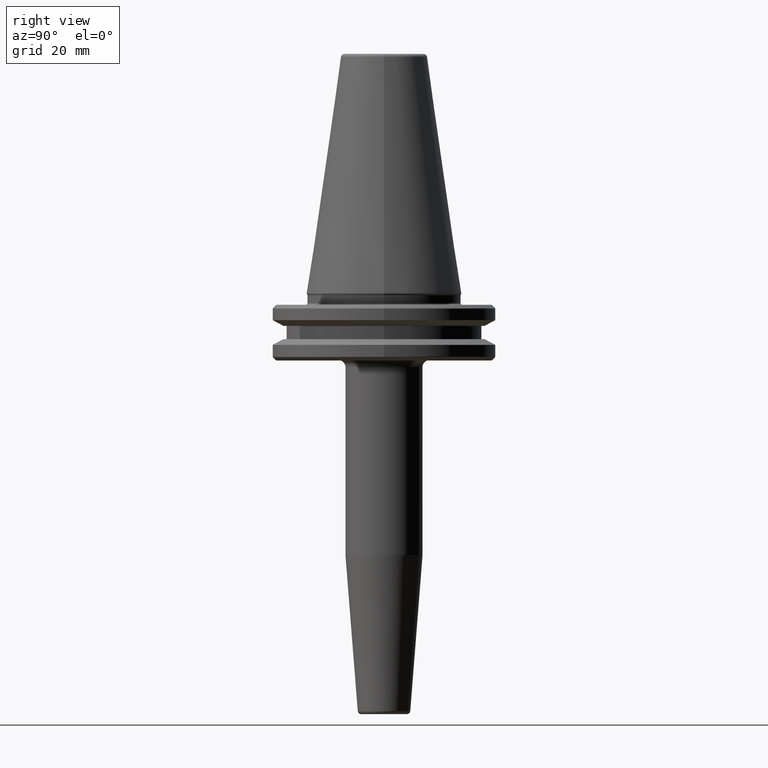
[diagram: clean part render]
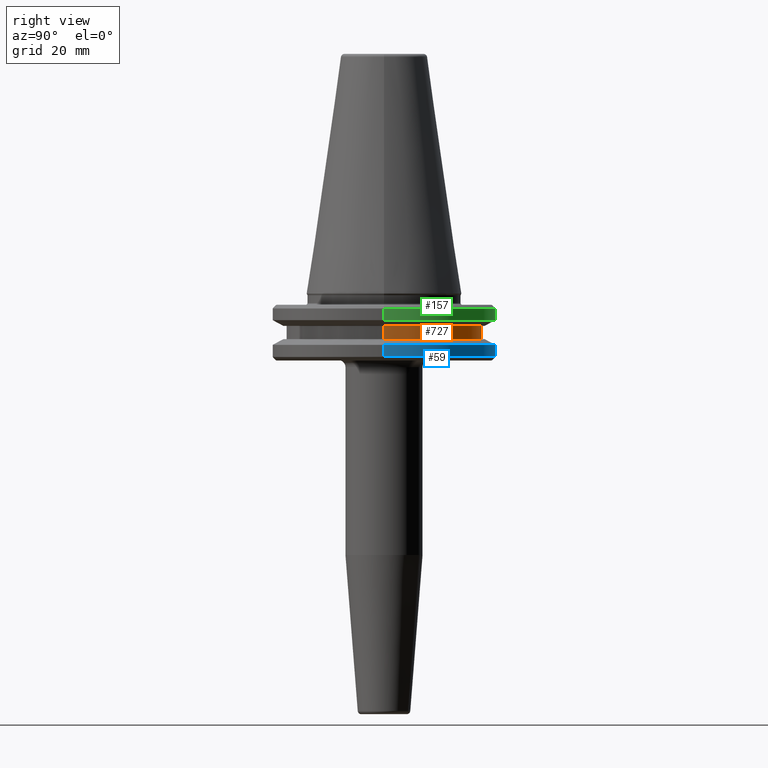
[diagram: same view with three faces highlighted in distinct colors, each labeled with its STEP entity id]
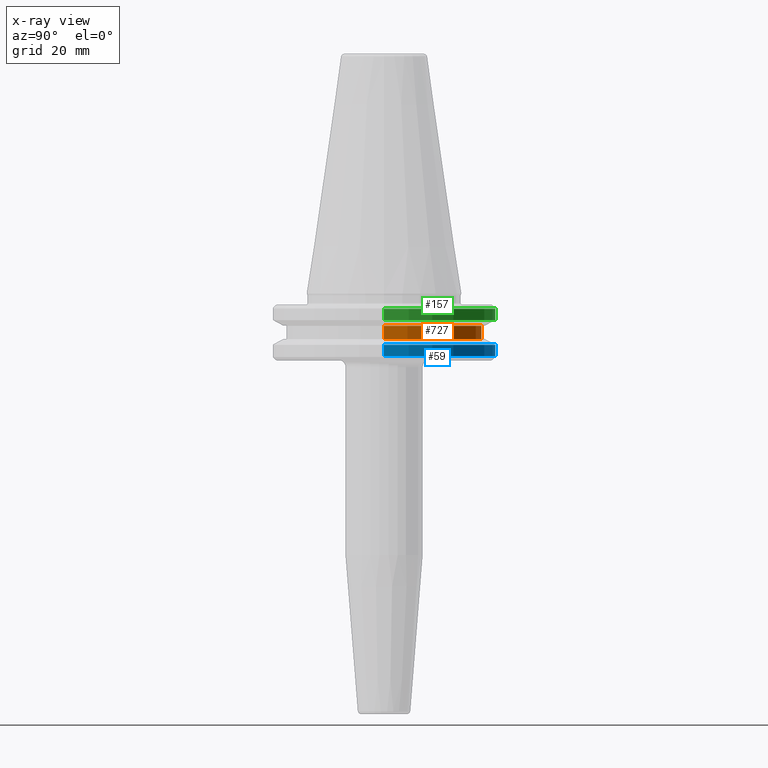
[diagram: x-ray of the same camera — body ghosted, the three highlighted faces saturated]
A machine part, right view with three faces highlighted in distinct colors.
The next image is the same camera in x-ray (body ghosted, the three faces saturated) — at least one of them is partly hidden behind the body in this view.
Their STEP definitions:

[orange] entity #727 — the highlighted cylindrical surface (partial cylindrical patch) has radius 28 mm, axis along (-0, -0, 1).
#71 = VERTEX_POINT ( 'NONE', #1248 ) ;
#98 = CARTESIAN_POINT ( 'NONE',  ( -28.00000000000000000, 3.429011037612589300E-015, 113.5216080541959500 ) ) ;
#119 = DIRECTION ( 'NONE',  ( -0.0000000000000000000, -0.0000000000000000000, 1.000000000000000000 ) ) ;
#122 = EDGE_LOOP ( 'NONE', ( #1063, #841, #663, #935 ) ) ;
#135 = DIRECTION ( 'NONE',  ( 1.000000000000000000, 0.0000000000000000000, 0.0000000000000000000 ) ) ;
#180 = AXIS2_PLACEMENT_3D ( 'NONE', #230, #119, #696 ) ;
#230 = CARTESIAN_POINT ( 'NONE',  ( 0.0000000000000000000, 0.0000000000000000000, 113.5216080541959500 ) ) ;
#231 = AXIS2_PLACEMENT_3D ( 'NONE', #924, #1021, #342 ) ;
#243 = DIRECTION ( 'NONE',  ( -0.0000000000000000000, -0.0000000000000000000, 1.000000000000000000 ) ) ;
#247 = CARTESIAN_POINT ( 'NONE',  ( 0.0000000000000000000, 0.0000000000000000000, -13.00000000000001100 ) ) ;
#279 = LINE ( 'NONE', #98, #488 ) ;
#302 = AXIS2_PLACEMENT_3D ( 'NONE', #247, #243, #135 ) ;
#342 = DIRECTION ( 'NONE',  ( 1.000000000000000000, 0.0000000000000000000, 0.0000000000000000000 ) ) ;
#389 = DIRECTION ( 'NONE',  ( -0.0000000000000000000, -0.0000000000000000000, 1.000000000000000000 ) ) ;
#405 = CARTESIAN_POINT ( 'NONE',  ( -28.00000000000000000, 3.429011037612589300E-015, -9.199999999999999300 ) ) ;
#406 = EDGE_CURVE ( 'NONE', #71, #1187, #1234, .T. ) ;
#488 = VECTOR ( 'NONE', #389, 1000.000000000000000 ) ;
#525 = FACE_OUTER_BOUND ( 'NONE', #122, .T. ) ;
#567 = CARTESIAN_POINT ( 'NONE',  ( -28.00000000000000000, 3.429011037612589300E-015, -13.00000000000001100 ) ) ;
#606 = EDGE_CURVE ( 'NONE', #724, #71, #1168, .T. ) ;
#663 = ORIENTED_EDGE ( 'NONE', *, *, #406, .F. ) ;
#696 = DIRECTION ( 'NONE',  ( 1.000000000000000000, 0.0000000000000000000, 0.0000000000000000000 ) ) ;
#712 = CARTESIAN_POINT ( 'NONE',  ( 28.00000000000000000, 0.0000000000000000000, 113.5216080541959500 ) ) ;
#724 = VERTEX_POINT ( 'NONE', #1201 ) ;
#727 = ADVANCED_FACE ( 'NONE', ( #525 ), #798, .T. ) ;
#781 = EDGE_CURVE ( 'NONE', #724, #845, #1036, .T. ) ;
#798 = CYLINDRICAL_SURFACE ( 'NONE', #180, 28.00000000000000000 ) ;
#841 = ORIENTED_EDGE ( 'NONE', *, *, #1064, .T. ) ;
#845 = VERTEX_POINT ( 'NONE', #567 ) ;
#904 = DIRECTION ( 'NONE',  ( -0.0000000000000000000, -0.0000000000000000000, 1.000000000000000000 ) ) ;
#924 = CARTESIAN_POINT ( 'NONE',  ( 0.0000000000000000000, 0.0000000000000000000, -9.199999999999999300 ) ) ;
#935 = ORIENTED_EDGE ( 'NONE', *, *, #606, .F. ) ;
#1021 = DIRECTION ( 'NONE',  ( -0.0000000000000000000, -0.0000000000000000000, 1.000000000000000000 ) ) ;
#1036 = CIRCLE ( 'NONE', #302, 28.00000000000000000 ) ;
#1063 = ORIENTED_EDGE ( 'NONE', *, *, #781, .T. ) ;
#1064 = EDGE_CURVE ( 'NONE', #845, #1187, #279, .T. ) ;
#1138 = VECTOR ( 'NONE', #904, 1000.000000000000000 ) ;
#1168 = LINE ( 'NONE', #712, #1138 ) ;
#1187 = VERTEX_POINT ( 'NONE', #405 ) ;
#1201 = CARTESIAN_POINT ( 'NONE',  ( 28.00000000000000000, 0.0000000000000000000, -13.00000000000001100 ) ) ;
#1234 = CIRCLE ( 'NONE', #231, 28.00000000000000000 ) ;
#1248 = CARTESIAN_POINT ( 'NONE',  ( 28.00000000000000000, 0.0000000000000000000, -9.199999999999999300 ) ) ;

[blue] entity #59 — the highlighted cylindrical surface (partial cylindrical patch) has radius 31.75 mm, axis along (-0, -0, 1).
#11 = DIRECTION ( 'NONE',  ( -0.0000000000000000000, -0.0000000000000000000, 1.000000000000000000 ) ) ;
#24 = CARTESIAN_POINT ( 'NONE',  ( 31.75000000000000000, 0.0000000000000000000, -14.62183664205671200 ) ) ;
#27 = DIRECTION ( 'NONE',  ( 1.000000000000000000, 0.0000000000000000000, 0.0000000000000000000 ) ) ;
#45 = VERTEX_POINT ( 'NONE', #1254 ) ;
#59 = ADVANCED_FACE ( 'NONE', ( #272 ), #540, .T. ) ;
#74 = DIRECTION ( 'NONE',  ( -0.0000000000000000000, -0.0000000000000000000, 1.000000000000000000 ) ) ;
#76 = EDGE_CURVE ( 'NONE', #1006, #1117, #277, .T. ) ;
#89 = LINE ( 'NONE', #181, #1091 ) ;
#168 = DIRECTION ( 'NONE',  ( -0.0000000000000000000, -0.0000000000000000000, 1.000000000000000000 ) ) ;
#181 = CARTESIAN_POINT ( 'NONE',  ( -31.75000000000000000, 3.888253587292846500E-015, 113.5216080541959500 ) ) ;
#272 = FACE_OUTER_BOUND ( 'NONE', #587, .T. ) ;
#277 = CIRCLE ( 'NONE', #469, 31.75000000000000000 ) ;
#303 = EDGE_CURVE ( 'NONE', #425, #45, #610, .T. ) ;
#304 = DIRECTION ( 'NONE',  ( -0.0000000000000000000, -0.0000000000000000000, 1.000000000000000000 ) ) ;
#335 = EDGE_CURVE ( 'NONE', #1117, #45, #89, .T. ) ;
#337 = VECTOR ( 'NONE', #168, 1000.000000000000000 ) ;
#355 = AXIS2_PLACEMENT_3D ( 'NONE', #1243, #11, #1159 ) ;
#425 = VERTEX_POINT ( 'NONE', #24 ) ;
#469 = AXIS2_PLACEMENT_3D ( 'NONE', #686, #304, #27 ) ;
#494 = AXIS2_PLACEMENT_3D ( 'NONE', #574, #74, #561 ) ;
#540 = CYLINDRICAL_SURFACE ( 'NONE', #355, 31.75000000000000000 ) ;
#561 = DIRECTION ( 'NONE',  ( 1.000000000000000000, 0.0000000000000000000, 0.0000000000000000000 ) ) ;
#574 = CARTESIAN_POINT ( 'NONE',  ( 0.0000000000000000000, 0.0000000000000000000, -14.62183664205671200 ) ) ;
#587 = EDGE_LOOP ( 'NONE', ( #908, #692, #1142, #956 ) ) ;
#610 = CIRCLE ( 'NONE', #494, 31.75000000000000000 ) ;
#686 = CARTESIAN_POINT ( 'NONE',  ( 0.0000000000000000000, 0.0000000000000000000, -17.93431457505076300 ) ) ;
#688 = CARTESIAN_POINT ( 'NONE',  ( -31.75000000000000000, 3.888253587292846500E-015, -17.93431457505076300 ) ) ;
#692 = ORIENTED_EDGE ( 'NONE', *, *, #335, .T. ) ;
#742 = DIRECTION ( 'NONE',  ( -0.0000000000000000000, -0.0000000000000000000, 1.000000000000000000 ) ) ;
#745 = CARTESIAN_POINT ( 'NONE',  ( 31.75000000000000000, 0.0000000000000000000, 113.5216080541959500 ) ) ;
#852 = LINE ( 'NONE', #745, #337 ) ;
#908 = ORIENTED_EDGE ( 'NONE', *, *, #76, .T. ) ;
#956 = ORIENTED_EDGE ( 'NONE', *, *, #968, .F. ) ;
#968 = EDGE_CURVE ( 'NONE', #1006, #425, #852, .T. ) ;
#1006 = VERTEX_POINT ( 'NONE', #1046 ) ;
#1046 = CARTESIAN_POINT ( 'NONE',  ( 31.75000000000000000, 0.0000000000000000000, -17.93431457505076300 ) ) ;
#1091 = VECTOR ( 'NONE', #742, 1000.000000000000000 ) ;
#1117 = VERTEX_POINT ( 'NONE', #688 ) ;
#1142 = ORIENTED_EDGE ( 'NONE', *, *, #303, .F. ) ;
#1159 = DIRECTION ( 'NONE',  ( 1.000000000000000000, 0.0000000000000000000, 0.0000000000000000000 ) ) ;
#1243 = CARTESIAN_POINT ( 'NONE',  ( 0.0000000000000000000, 0.0000000000000000000, 113.5216080541959500 ) ) ;
#1254 = CARTESIAN_POINT ( 'NONE',  ( -31.75000000000000000, 3.888253587292846500E-015, -14.62183664205671200 ) ) ;

[green] entity #157 — the highlighted cylindrical surface (partial cylindrical patch) has radius 31.75 mm, axis along (-0, -0, 1).
#23 = LINE ( 'NONE', #867, #253 ) ;
#44 = DIRECTION ( 'NONE',  ( -0.0000000000000000000, -0.0000000000000000000, 1.000000000000000000 ) ) ;
#50 = CIRCLE ( 'NONE', #1147, 31.75000000000000000 ) ;
#128 = ORIENTED_EDGE ( 'NONE', *, *, #391, .T. ) ;
#157 = ADVANCED_FACE ( 'NONE', ( #1019 ), #930, .T. ) ;
#193 = CARTESIAN_POINT ( 'NONE',  ( -31.75000000000000000, 3.888253587292846500E-015, -7.578163357943284800 ) ) ;
#196 = CARTESIAN_POINT ( 'NONE',  ( -31.75000000000000000, 3.888253587292846500E-015, -4.365685424949250000 ) ) ;
#205 = CIRCLE ( 'NONE', #289, 31.75000000000000000 ) ;
#253 = VECTOR ( 'NONE', #290, 1000.000000000000000 ) ;
#289 = AXIS2_PLACEMENT_3D ( 'NONE', #799, #605, #988 ) ;
#290 = DIRECTION ( 'NONE',  ( -0.0000000000000000000, -0.0000000000000000000, 1.000000000000000000 ) ) ;
#297 = CARTESIAN_POINT ( 'NONE',  ( 0.0000000000000000000, 0.0000000000000000000, -4.365685424949250000 ) ) ;
#326 = DIRECTION ( 'NONE',  ( 1.000000000000000000, 0.0000000000000000000, 0.0000000000000000000 ) ) ;
#391 = EDGE_CURVE ( 'NONE', #591, #1039, #205, .T. ) ;
#456 = EDGE_CURVE ( 'NONE', #1039, #861, #885, .T. ) ;
#482 = VERTEX_POINT ( 'NONE', #711 ) ;
#546 = EDGE_CURVE ( 'NONE', #482, #861, #50, .T. ) ;
#591 = VERTEX_POINT ( 'NONE', #907 ) ;
#596 = ORIENTED_EDGE ( 'NONE', *, *, #456, .T. ) ;
#605 = DIRECTION ( 'NONE',  ( -0.0000000000000000000, -0.0000000000000000000, 1.000000000000000000 ) ) ;
#607 = DIRECTION ( 'NONE',  ( 1.000000000000000000, 0.0000000000000000000, 0.0000000000000000000 ) ) ;
#711 = CARTESIAN_POINT ( 'NONE',  ( 31.75000000000000000, 0.0000000000000000000, -4.365685424949250000 ) ) ;
#769 = ORIENTED_EDGE ( 'NONE', *, *, #546, .F. ) ;
#779 = DIRECTION ( 'NONE',  ( -0.0000000000000000000, -0.0000000000000000000, 1.000000000000000000 ) ) ;
#799 = CARTESIAN_POINT ( 'NONE',  ( 0.0000000000000000000, 0.0000000000000000000, -7.578163357943284800 ) ) ;
#828 = AXIS2_PLACEMENT_3D ( 'NONE', #1075, #779, #607 ) ;
#861 = VERTEX_POINT ( 'NONE', #196 ) ;
#867 = CARTESIAN_POINT ( 'NONE',  ( 31.75000000000000000, 0.0000000000000000000, 113.5216080541959500 ) ) ;
#881 = DIRECTION ( 'NONE',  ( -0.0000000000000000000, -0.0000000000000000000, 1.000000000000000000 ) ) ;
#885 = LINE ( 'NONE', #919, #915 ) ;
#907 = CARTESIAN_POINT ( 'NONE',  ( 31.75000000000000000, 0.0000000000000000000, -7.578163357943284800 ) ) ;
#915 = VECTOR ( 'NONE', #44, 1000.000000000000000 ) ;
#919 = CARTESIAN_POINT ( 'NONE',  ( -31.75000000000000000, 3.888253587292846500E-015, 113.5216080541959500 ) ) ;
#930 = CYLINDRICAL_SURFACE ( 'NONE', #828, 31.75000000000000000 ) ;
#978 = EDGE_LOOP ( 'NONE', ( #128, #596, #769, #1154 ) ) ;
#988 = DIRECTION ( 'NONE',  ( 1.000000000000000000, 0.0000000000000000000, 0.0000000000000000000 ) ) ;
#1019 = FACE_OUTER_BOUND ( 'NONE', #978, .T. ) ;
#1032 = EDGE_CURVE ( 'NONE', #591, #482, #23, .T. ) ;
#1039 = VERTEX_POINT ( 'NONE', #193 ) ;
#1075 = CARTESIAN_POINT ( 'NONE',  ( 0.0000000000000000000, 0.0000000000000000000, 113.5216080541959500 ) ) ;
#1147 = AXIS2_PLACEMENT_3D ( 'NONE', #297, #881, #326 ) ;
#1154 = ORIENTED_EDGE ( 'NONE', *, *, #1032, .F. ) ;